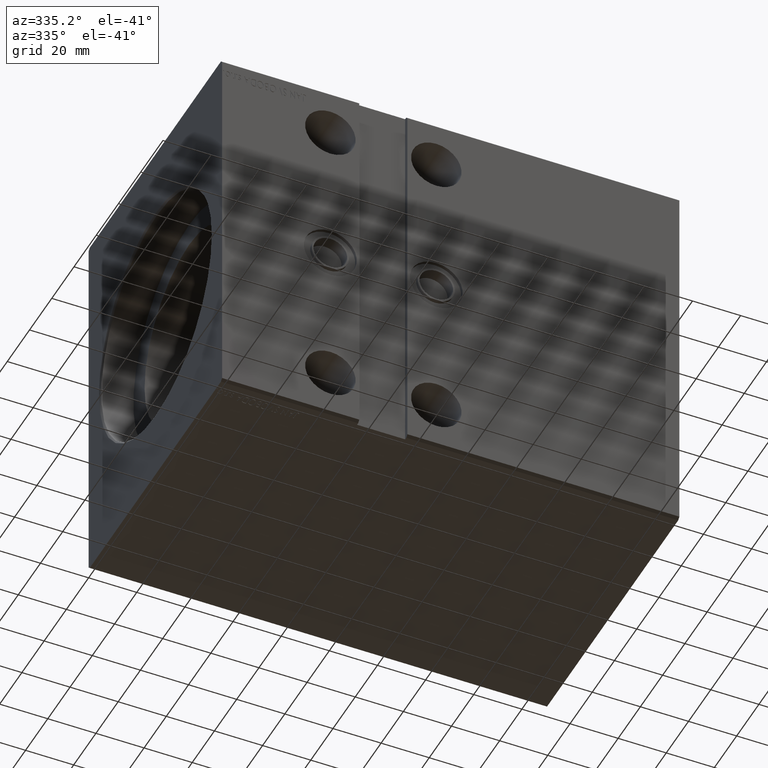
[diagram: clean part render]
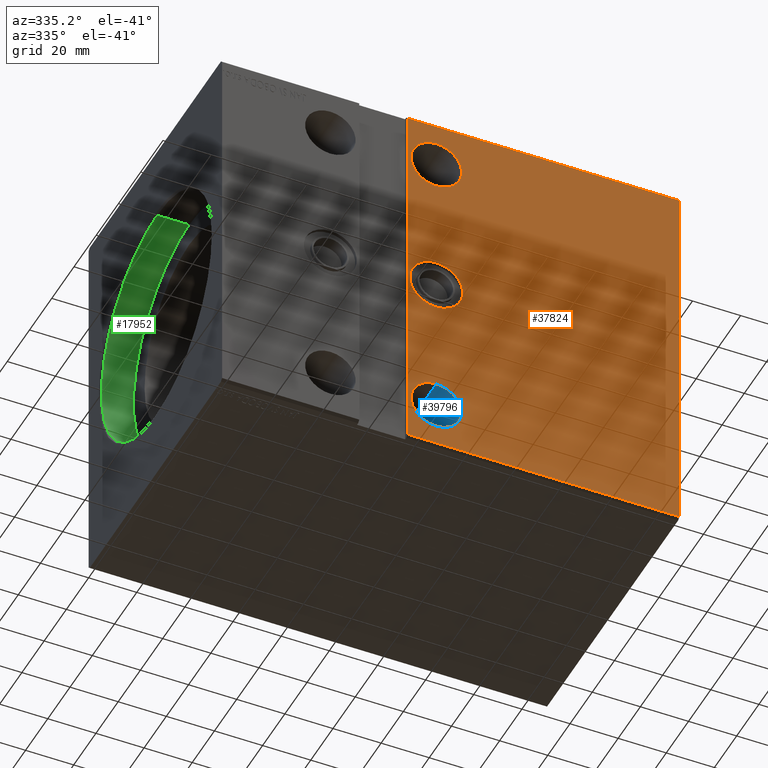
[diagram: same view with three faces highlighted in distinct colors, each labeled with its STEP entity id]
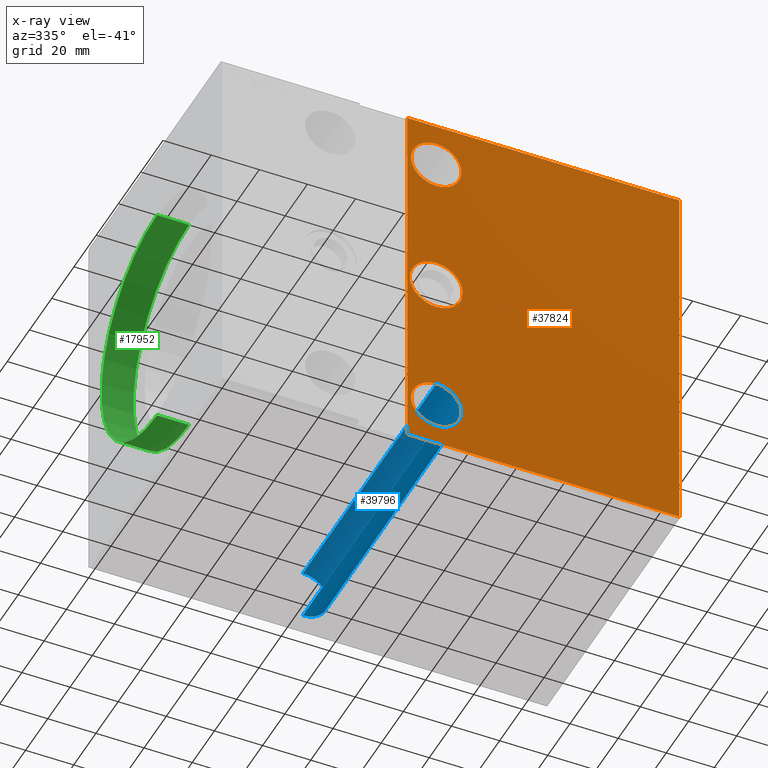
[diagram: x-ray of the same camera — body ghosted, the three highlighted faces saturated]
A machine part, auxiliary view with three faces highlighted in distinct colors.
The next image is the same camera in x-ray (body ghosted, the three faces saturated) — at least one of them is partly hidden behind the body in this view.
Their STEP definitions:

[orange] entity #37824 — the highlighted planar face has unit normal (-0, 1, 0).
#22 = DIRECTION ( 'NONE',  ( -0.000000000000000000, 1.000000000000000000, 1.317511500741879171E-16 ) ) ;
#548 = ORIENTED_EDGE ( 'NONE', *, *, #3424, .F. ) ;
#774 = VERTEX_POINT ( 'NONE', #36850 ) ;
#784 = CIRCLE ( 'NONE', #33368, 10.49999999999998934 ) ;
#1117 = VECTOR ( 'NONE', #17985, 1000.000000000000000 ) ;
#2073 = EDGE_CURVE ( 'NONE', #13066, #5095, #784, .T. ) ;
#2318 = ORIENTED_EDGE ( 'NONE', *, *, #15128, .T. ) ;
#2362 = FACE_OUTER_BOUND ( 'NONE', #9910, .T. ) ;
#3019 = DIRECTION ( 'NONE',  ( 0.000000000000000000, 0.000000000000000000, 1.000000000000000000 ) ) ;
#3104 = AXIS2_PLACEMENT_3D ( 'NONE', #25936, #22, #26564 ) ;
#3424 = EDGE_CURVE ( 'NONE', #31019, #18645, #32245, .T. ) ;
#3666 = LINE ( 'NONE', #16416, #15340 ) ;
#4148 = VERTEX_POINT ( 'NONE', #37465 ) ;
#4353 = CARTESIAN_POINT ( 'NONE',  ( 77.00000000000002842, -60.00000000000000000, -79.00000000000000000 ) ) ;
#4465 = CIRCLE ( 'NONE', #30948, 10.99999999999999289 ) ;
#4797 = EDGE_CURVE ( 'NONE', #16595, #774, #29885, .T. ) ;
#5082 = DIRECTION ( 'NONE',  ( -0.000000000000000000, 1.000000000000000000, 5.507058653894625853E-17 ) ) ;
#5095 = VERTEX_POINT ( 'NONE', #5534 ) ;
#5534 = CARTESIAN_POINT ( 'NONE',  ( 89.00000000000000000, -60.00000000000002132, 70.49999999999998579 ) ) ;
#5559 = FACE_BOUND ( 'NONE', #35007, .T. ) ;
#7932 = CARTESIAN_POINT ( 'NONE',  ( 190.0000000000000000, -60.00000000000002132, 78.99999999999998579 ) ) ;
#8007 = CARTESIAN_POINT ( 'NONE',  ( 190.0000000000000000, -60.00000000000002132, 78.99999999999998579 ) ) ;
#8271 = VECTOR ( 'NONE', #32671, 1000.000000000000000 ) ;
#8478 = CARTESIAN_POINT ( 'NONE',  ( 89.00000000000001421, -60.00000000000000711, -9.455516992110148503E-15 ) ) ;
#9491 = ORIENTED_EDGE ( 'NONE', *, *, #40046, .T. ) ;
#9910 = EDGE_LOOP ( 'NONE', ( #2318, #34338, #548, #28991 ) ) ;
#10811 = ORIENTED_EDGE ( 'NONE', *, *, #26636, .F. ) ;
#12211 = VERTEX_POINT ( 'NONE', #32045 ) ;
#12733 = CARTESIAN_POINT ( 'NONE',  ( 89.00000000000000000, -60.00000000000002132, 49.50000000000000000 ) ) ;
#13066 = VERTEX_POINT ( 'NONE', #12733 ) ;
#13285 = VECTOR ( 'NONE', #17295, 1000.000000000000000 ) ;
#13816 = CARTESIAN_POINT ( 'NONE',  ( 89.00000000000001421, -60.00000000000000711, -60.00000000000000711 ) ) ;
#13819 = VERTEX_POINT ( 'NONE', #17403 ) ;
#14803 = CARTESIAN_POINT ( 'NONE',  ( 190.0000000000000000, -60.00000000000000000, -79.00000000000001421 ) ) ;
#15128 = EDGE_CURVE ( 'NONE', #12211, #4148, #33316, .T. ) ;
#15338 = FACE_BOUND ( 'NONE', #39709, .T. ) ;
#15340 = VECTOR ( 'NONE', #22021, 1000.000000000000000 ) ;
#16416 = CARTESIAN_POINT ( 'NONE',  ( 77.00000000000001421, -60.00000000000001421, 79.99999999999997158 ) ) ;
#16595 = VERTEX_POINT ( 'NONE', #17686 ) ;
#17295 = DIRECTION ( 'NONE',  ( 0.000000000000000000, 1.317511500741878924E-16, -1.000000000000000000 ) ) ;
#17403 = CARTESIAN_POINT ( 'NONE',  ( 89.00000000000001421, -60.00000000000000711, 10.99999999999998401 ) ) ;
#17686 = CARTESIAN_POINT ( 'NONE',  ( 89.00000000000001421, -60.00000000000000711, -49.50000000000000711 ) ) ;
#17985 = DIRECTION ( 'NONE',  ( -1.000000000000000000, -0.000000000000000000, -0.000000000000000000 ) ) ;
#18645 = VERTEX_POINT ( 'NONE', #4353 ) ;
#18860 = DIRECTION ( 'NONE',  ( 0.000000000000000000, 0.000000000000000000, 1.000000000000000000 ) ) ;
#19063 = DIRECTION ( 'NONE',  ( -0.000000000000000000, 1.000000000000000000, 1.317511500741879171E-16 ) ) ;
#20471 = LINE ( 'NONE', #7932, #13285 ) ;
#20817 = CIRCLE ( 'NONE', #33723, 10.99999999999999289 ) ;
#21557 = DIRECTION ( 'NONE',  ( 0.000000000000000000, -1.000000000000000000, -1.317511500741879171E-16 ) ) ;
#21710 = FACE_BOUND ( 'NONE', #38139, .T. ) ;
#22021 = DIRECTION ( 'NONE',  ( -8.673617379884036705E-17, -8.673617379884036705E-17, 1.000000000000000000 ) ) ;
#23566 = DIRECTION ( 'NONE',  ( 0.000000000000000000, 0.000000000000000000, 1.000000000000000000 ) ) ;
#23998 = ORIENTED_EDGE ( 'NONE', *, *, #4797, .T. ) ;
#24785 = CIRCLE ( 'NONE', #37702, 10.49999999999999467 ) ;
#25099 = PLANE ( 'NONE',  #3104 ) ;
#25936 = CARTESIAN_POINT ( 'NONE',  ( 190.0000000000000000, -60.00000000000002132, 78.99999999999998579 ) ) ;
#26564 = DIRECTION ( 'NONE',  ( 0.000000000000000000, -1.317511500741879171E-16, 1.000000000000000000 ) ) ;
#26636 = EDGE_CURVE ( 'NONE', #5095, #13066, #39651, .T. ) ;
#26803 = DIRECTION ( 'NONE',  ( 0.000000000000000000, -1.000000000000000000, -1.317511500741879171E-16 ) ) ;
#27224 = CARTESIAN_POINT ( 'NONE',  ( 89.00000000000000000, -60.00000000000002132, 59.99999999999999289 ) ) ;
#28185 = ORIENTED_EDGE ( 'NONE', *, *, #37206, .T. ) ;
#28203 = CARTESIAN_POINT ( 'NONE',  ( 89.00000000000001421, -60.00000000000000711, -60.00000000000000711 ) ) ;
#28760 = DIRECTION ( 'NONE',  ( 0.000000000000000000, 0.000000000000000000, 1.000000000000000000 ) ) ;
#28991 = ORIENTED_EDGE ( 'NONE', *, *, #36705, .F. ) ;
#29726 = VERTEX_POINT ( 'NONE', #33603 ) ;
#29885 = CIRCLE ( 'NONE', #34005, 10.49999999999999467 ) ;
#30590 = EDGE_CURVE ( 'NONE', #774, #16595, #24785, .T. ) ;
#30765 = ORIENTED_EDGE ( 'NONE', *, *, #2073, .F. ) ;
#30948 = AXIS2_PLACEMENT_3D ( 'NONE', #8478, #5082, #30999 ) ;
#30999 = DIRECTION ( 'NONE',  ( 0.000000000000000000, 0.000000000000000000, 1.000000000000000000 ) ) ;
#31019 = VERTEX_POINT ( 'NONE', #14803 ) ;
#31514 = CARTESIAN_POINT ( 'NONE',  ( 89.00000000000001421, -60.00000000000000711, -9.455516992110148503E-15 ) ) ;
#31529 = CARTESIAN_POINT ( 'NONE',  ( 89.00000000000000000, -60.00000000000002132, 59.99999999999999289 ) ) ;
#32045 = CARTESIAN_POINT ( 'NONE',  ( 190.0000000000000000, -60.00000000000002132, 78.99999999999998579 ) ) ;
#32245 = LINE ( 'NONE', #35866, #8271 ) ;
#32671 = DIRECTION ( 'NONE',  ( -1.000000000000000000, -0.000000000000000000, -0.000000000000000000 ) ) ;
#33316 = LINE ( 'NONE', #8007, #1117 ) ;
#33368 = AXIS2_PLACEMENT_3D ( 'NONE', #27224, #26803, #33836 ) ;
#33603 = CARTESIAN_POINT ( 'NONE',  ( 89.00000000000001421, -60.00000000000000711, -11.00000000000000178 ) ) ;
#33723 = AXIS2_PLACEMENT_3D ( 'NONE', #31514, #34928, #3019 ) ;
#33836 = DIRECTION ( 'NONE',  ( 0.000000000000000000, 0.000000000000000000, 1.000000000000000000 ) ) ;
#34005 = AXIS2_PLACEMENT_3D ( 'NONE', #28203, #19063, #18860 ) ;
#34338 = ORIENTED_EDGE ( 'NONE', *, *, #37635, .F. ) ;
#34928 = DIRECTION ( 'NONE',  ( -0.000000000000000000, 1.000000000000000000, 5.507058653894625853E-17 ) ) ;
#35007 = EDGE_LOOP ( 'NONE', ( #38830, #23998 ) ) ;
#35553 = AXIS2_PLACEMENT_3D ( 'NONE', #31529, #21557, #28760 ) ;
#35866 = CARTESIAN_POINT ( 'NONE',  ( 190.0000000000000000, -60.00000000000000000, -79.00000000000001421 ) ) ;
#36705 = EDGE_CURVE ( 'NONE', #12211, #31019, #20471, .T. ) ;
#36850 = CARTESIAN_POINT ( 'NONE',  ( 89.00000000000001421, -60.00000000000000711, -70.50000000000000000 ) ) ;
#37206 = EDGE_CURVE ( 'NONE', #29726, #13819, #4465, .T. ) ;
#37465 = CARTESIAN_POINT ( 'NONE',  ( 77.00000000000001421, -60.00000000000001421, 79.00000000000000000 ) ) ;
#37635 = EDGE_CURVE ( 'NONE', #18645, #4148, #3666, .T. ) ;
#37702 = AXIS2_PLACEMENT_3D ( 'NONE', #13816, #39736, #23566 ) ;
#37824 = ADVANCED_FACE ( 'NONE', ( #21710, #5559, #2362, #15338 ), #25099, .F. ) ;
#38139 = EDGE_LOOP ( 'NONE', ( #28185, #9491 ) ) ;
#38830 = ORIENTED_EDGE ( 'NONE', *, *, #30590, .T. ) ;
#39651 = CIRCLE ( 'NONE', #35553, 10.49999999999998934 ) ;
#39709 = EDGE_LOOP ( 'NONE', ( #30765, #10811 ) ) ;
#39736 = DIRECTION ( 'NONE',  ( -0.000000000000000000, 1.000000000000000000, 1.317511500741879171E-16 ) ) ;
#40046 = EDGE_CURVE ( 'NONE', #13819, #29726, #20817, .T. ) ;

[blue] entity #39796 — the highlighted cylindrical surface (edge-blend (fillet) strip) has radius 10.5 mm, axis along (-0, -1, -0).
#600 = CARTESIAN_POINT ( 'NONE',  ( 89.00000000000001421, 60.00000000000003553, -70.50000000000000000 ) ) ;
#774 = VERTEX_POINT ( 'NONE', #36850 ) ;
#970 = ORIENTED_EDGE ( 'NONE', *, *, #40417, .F. ) ;
#1559 = VERTEX_POINT ( 'NONE', #20958 ) ;
#2868 = FACE_OUTER_BOUND ( 'NONE', #14973, .T. ) ;
#3187 = DIRECTION ( 'NONE',  ( 0.000000000000000000, -1.000000000000000000, -5.507058653894625853E-17 ) ) ;
#4797 = EDGE_CURVE ( 'NONE', #16595, #774, #29885, .T. ) ;
#5847 = DIRECTION ( 'NONE',  ( -0.000000000000000000, -1.000000000000000000, -5.507058653894625237E-17 ) ) ;
#5856 = LINE ( 'NONE', #12039, #20158 ) ;
#5938 = VECTOR ( 'NONE', #23316, 1000.000000000000000 ) ;
#7703 = ORIENTED_EDGE ( 'NONE', *, *, #17725, .F. ) ;
#8578 = CARTESIAN_POINT ( 'NONE',  ( 89.00000000000001421, 60.00000000000003553, -49.50000000000000000 ) ) ;
#12039 = CARTESIAN_POINT ( 'NONE',  ( 89.00000000000001421, 60.00000000000003553, -49.50000000000000000 ) ) ;
#12939 = EDGE_CURVE ( 'NONE', #1559, #774, #35464, .T. ) ;
#14973 = EDGE_LOOP ( 'NONE', ( #7703, #970, #35576, #27312 ) ) ;
#16595 = VERTEX_POINT ( 'NONE', #17686 ) ;
#16981 = DIRECTION ( 'NONE',  ( 0.000000000000000000, 0.000000000000000000, -1.000000000000000000 ) ) ;
#17128 = VERTEX_POINT ( 'NONE', #8578 ) ;
#17686 = CARTESIAN_POINT ( 'NONE',  ( 89.00000000000001421, -60.00000000000000711, -49.50000000000000711 ) ) ;
#17725 = EDGE_CURVE ( 'NONE', #17128, #16595, #5856, .T. ) ;
#18860 = DIRECTION ( 'NONE',  ( 0.000000000000000000, 0.000000000000000000, 1.000000000000000000 ) ) ;
#19063 = DIRECTION ( 'NONE',  ( -0.000000000000000000, 1.000000000000000000, 1.317511500741879171E-16 ) ) ;
#20148 = AXIS2_PLACEMENT_3D ( 'NONE', #22004, #5847, #34771 ) ;
#20158 = VECTOR ( 'NONE', #37967, 1000.000000000000000 ) ;
#20958 = CARTESIAN_POINT ( 'NONE',  ( 89.00000000000001421, 60.00000000000003553, -70.50000000000000000 ) ) ;
#22004 = CARTESIAN_POINT ( 'NONE',  ( 89.00000000000001421, 60.00000000000003553, -60.00000000000000000 ) ) ;
#23316 = DIRECTION ( 'NONE',  ( -0.000000000000000000, -1.000000000000000000, -5.507058653894625237E-17 ) ) ;
#27312 = ORIENTED_EDGE ( 'NONE', *, *, #4797, .F. ) ;
#28203 = CARTESIAN_POINT ( 'NONE',  ( 89.00000000000001421, -60.00000000000000711, -60.00000000000000711 ) ) ;
#29885 = CIRCLE ( 'NONE', #34005, 10.49999999999999467 ) ;
#32383 = CIRCLE ( 'NONE', #35100, 10.49999999999999467 ) ;
#34005 = AXIS2_PLACEMENT_3D ( 'NONE', #28203, #19063, #18860 ) ;
#34771 = DIRECTION ( 'NONE',  ( 0.000000000000000000, 0.000000000000000000, -1.000000000000000000 ) ) ;
#35100 = AXIS2_PLACEMENT_3D ( 'NONE', #36128, #3187, #16981 ) ;
#35464 = LINE ( 'NONE', #600, #5938 ) ;
#35576 = ORIENTED_EDGE ( 'NONE', *, *, #12939, .T. ) ;
#36128 = CARTESIAN_POINT ( 'NONE',  ( 89.00000000000001421, 60.00000000000003553, -60.00000000000000000 ) ) ;
#36850 = CARTESIAN_POINT ( 'NONE',  ( 89.00000000000001421, -60.00000000000000711, -70.50000000000000000 ) ) ;
#37959 = CYLINDRICAL_SURFACE ( 'NONE', #20148, 10.49999999999999467 ) ;
#37967 = DIRECTION ( 'NONE',  ( -0.000000000000000000, -1.000000000000000000, -5.507058653894625237E-17 ) ) ;
#39796 = ADVANCED_FACE ( 'NONE', ( #2868 ), #37959, .F. ) ;
#40417 = EDGE_CURVE ( 'NONE', #1559, #17128, #32383, .T. ) ;

[green] entity #17952 — the highlighted cylindrical surface (partial cylindrical patch) has radius 50 mm, axis along (-1, -0, -0).
#821 = DIRECTION ( 'NONE',  ( 0.000000000000000000, 0.000000000000000000, 1.000000000000000000 ) ) ;
#1282 = ORIENTED_EDGE ( 'NONE', *, *, #24798, .T. ) ;
#1390 = ORIENTED_EDGE ( 'NONE', *, *, #19444, .F. ) ;
#4346 = DIRECTION ( 'NONE',  ( -1.000000000000000000, 0.000000000000000000, 0.000000000000000000 ) ) ;
#5189 = FACE_OUTER_BOUND ( 'NONE', #33857, .T. ) ;
#5461 = ORIENTED_EDGE ( 'NONE', *, *, #10434, .F. ) ;
#6317 = AXIS2_PLACEMENT_3D ( 'NONE', #13161, #32501, #821 ) ;
#6891 = VERTEX_POINT ( 'NONE', #18811 ) ;
#7999 = VECTOR ( 'NONE', #35902, 1000.000000000000000 ) ;
#8439 = LINE ( 'NONE', #34168, #40266 ) ;
#9178 = VERTEX_POINT ( 'NONE', #22173 ) ;
#9304 = AXIS2_PLACEMENT_3D ( 'NONE', #16677, #4346, #36029 ) ;
#10434 = EDGE_CURVE ( 'NONE', #6891, #9178, #25970, .T. ) ;
#10591 = VERTEX_POINT ( 'NONE', #35228 ) ;
#13161 = CARTESIAN_POINT ( 'NONE',  ( 14.00000000000000000, 0.000000000000000000, 0.000000000000000000 ) ) ;
#16094 = CIRCLE ( 'NONE', #9304, 50.00000000000000000 ) ;
#16677 = CARTESIAN_POINT ( 'NONE',  ( 0.6999999999999992895, 0.000000000000000000, 0.000000000000000000 ) ) ;
#17952 = ADVANCED_FACE ( 'NONE', ( #5189 ), #21757, .F. ) ;
#18811 = CARTESIAN_POINT ( 'NONE',  ( 14.00000000000000000, 0.000000000000000000, 50.00000000000000000 ) ) ;
#19444 = EDGE_CURVE ( 'NONE', #9178, #29392, #23336, .T. ) ;
#20147 = CARTESIAN_POINT ( 'NONE',  ( 14.00000000000000000, 6.123233995736766085E-15, -50.00000000000000000 ) ) ;
#21757 = CYLINDRICAL_SURFACE ( 'NONE', #29683, 50.00000000000000000 ) ;
#22173 = CARTESIAN_POINT ( 'NONE',  ( 14.00000000000000000, 6.123233995736766085E-15, -50.00000000000000000 ) ) ;
#23336 = LINE ( 'NONE', #20147, #7999 ) ;
#24798 = EDGE_CURVE ( 'NONE', #6891, #10591, #8439, .T. ) ;
#25141 = CARTESIAN_POINT ( 'NONE',  ( 14.00000000000000000, 0.000000000000000000, 0.000000000000000000 ) ) ;
#25970 = CIRCLE ( 'NONE', #6317, 50.00000000000000000 ) ;
#29392 = VERTEX_POINT ( 'NONE', #41710 ) ;
#29683 = AXIS2_PLACEMENT_3D ( 'NONE', #25141, #38338, #41520 ) ;
#32501 = DIRECTION ( 'NONE',  ( -1.000000000000000000, 0.000000000000000000, 0.000000000000000000 ) ) ;
#33857 = EDGE_LOOP ( 'NONE', ( #1390, #5461, #1282, #39449 ) ) ;
#34168 = CARTESIAN_POINT ( 'NONE',  ( 14.00000000000000000, 0.000000000000000000, 50.00000000000000000 ) ) ;
#34593 = DIRECTION ( 'NONE',  ( -1.000000000000000000, -0.000000000000000000, -0.000000000000000000 ) ) ;
#35228 = CARTESIAN_POINT ( 'NONE',  ( 0.6999999999999992895, 0.000000000000000000, 50.00000000000000000 ) ) ;
#35902 = DIRECTION ( 'NONE',  ( -1.000000000000000000, -0.000000000000000000, -0.000000000000000000 ) ) ;
#36029 = DIRECTION ( 'NONE',  ( 0.000000000000000000, 0.000000000000000000, -1.000000000000000000 ) ) ;
#38338 = DIRECTION ( 'NONE',  ( -1.000000000000000000, -0.000000000000000000, -0.000000000000000000 ) ) ;
#39449 = ORIENTED_EDGE ( 'NONE', *, *, #40660, .T. ) ;
#40266 = VECTOR ( 'NONE', #34593, 1000.000000000000000 ) ;
#40660 = EDGE_CURVE ( 'NONE', #10591, #29392, #16094, .T. ) ;
#41520 = DIRECTION ( 'NONE',  ( 0.000000000000000000, 0.000000000000000000, 1.000000000000000000 ) ) ;
#41710 = CARTESIAN_POINT ( 'NONE',  ( 0.6999999999999992895, 6.123233995736766085E-15, -50.00000000000000000 ) ) ;